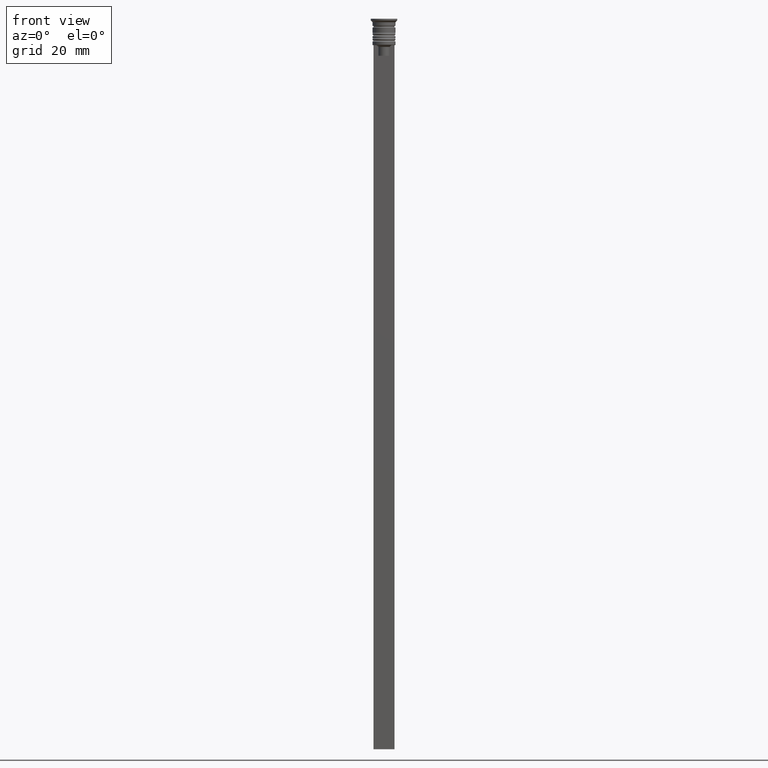
[diagram: clean part render]
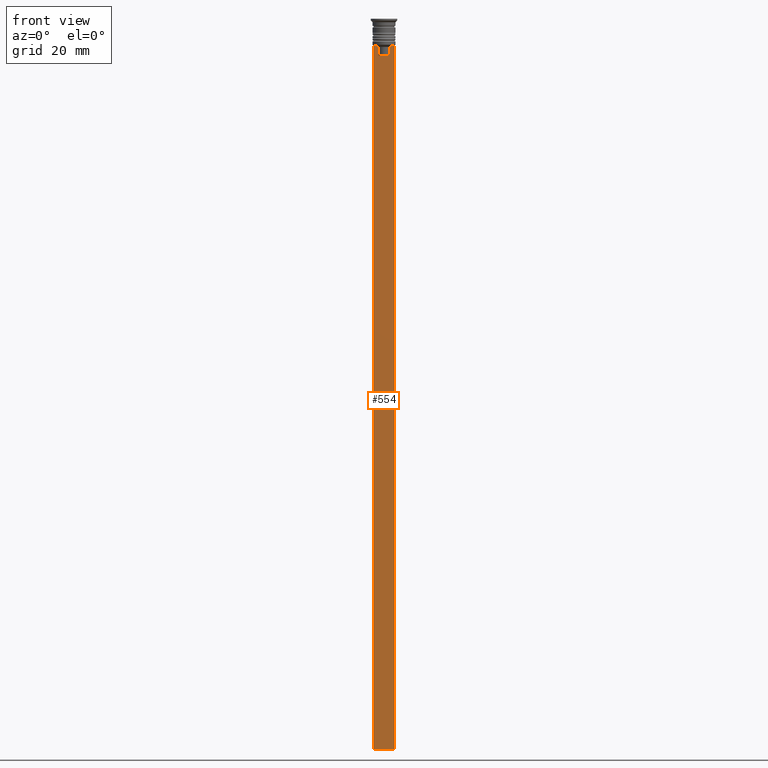
[diagram: same view with one face highlighted and labeled with its STEP entity id]
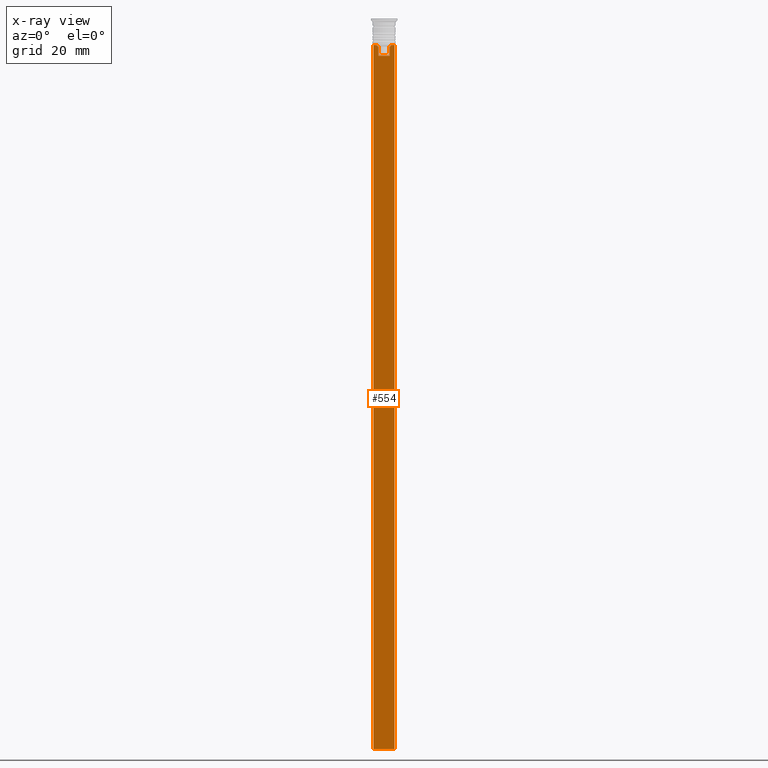
[diagram: x-ray of the same camera — body ghosted, the highlighted face saturated]
A machine part, front view. The second image highlights one B-rep face of the part: STEP entity #554.
The next image is the same camera in x-ray: the body ghosted, the highlighted face saturated — about 0% of this face is hidden behind the body in this view.
In plain terms, the highlighted planar face has unit normal (0, -1, -0).
Its self-contained STEP definition (entity closure, byte-faithful):
#5 = CARTESIAN_POINT ( 'NONE',  ( 2.999999999999995559, -0.3500000000000000333, -7.500000000000000000 ) ) ;
#15 = B_SPLINE_CURVE_WITH_KNOTS ( 'NONE', 3,
 ( #201, #1575, #1550, #1542 ),
 .UNSPECIFIED., .F., .F.,
 ( 4, 4 ),
 ( 0.003684653461239337929, 0.004398058763641257696 ),
 .UNSPECIFIED. ) ;
#19 = VECTOR ( 'NONE', #114, 1000.000000000000000 ) ;
#42 = CARTESIAN_POINT ( 'NONE',  ( 1.612451549659713601, -0.3500000000000000333, 0.000000000000000000 ) ) ;
#46 = VECTOR ( 'NONE', #1899, 1000.000000000000000 ) ;
#64 = ORIENTED_EDGE ( 'NONE', *, *, #2059, .F. ) ;
#90 = CARTESIAN_POINT ( 'NONE',  ( 2.999999999999995559, -0.3500000000000000333, -1.459304675784417915 ) ) ;
#114 = DIRECTION ( 'NONE',  ( -1.000000000000000000, 0.000000000000000000, 0.000000000000000000 ) ) ;
#167 = LINE ( 'NONE', #1491, #1529 ) ;
#201 = CARTESIAN_POINT ( 'NONE',  ( -2.121320343559647270, -0.3500000000000000333, -7.500000000000000000 ) ) ;
#285 = VERTEX_POINT ( 'NONE', #1363 ) ;
#318 = DIRECTION ( 'NONE',  ( 1.000000000000000000, 0.000000000000000000, 0.000000000000000000 ) ) ;
#319 = VERTEX_POINT ( 'NONE', #5 ) ;
#339 = VERTEX_POINT ( 'NONE', #560 ) ;
#381 = CARTESIAN_POINT ( 'NONE',  ( 1.612451549659713601, -0.3500000000000000333, -8.000000000000000000 ) ) ;
#410 = VERTEX_POINT ( 'NONE', #2062 ) ;
#421 = EDGE_CURVE ( 'NONE', #499, #427, #15, .T. ) ;
#424 = ORIENTED_EDGE ( 'NONE', *, *, #421, .F. ) ;
#427 = VERTEX_POINT ( 'NONE', #1042 ) ;
#458 = ORIENTED_EDGE ( 'NONE', *, *, #2029, .F. ) ;
#499 = VERTEX_POINT ( 'NONE', #593 ) ;
#534 = AXIS2_PLACEMENT_3D ( 'NONE', #1596, #776, #1434 ) ;
#554 = ADVANCED_FACE ( 'NONE', ( #1928 ), #970, .T. ) ;
#556 = CARTESIAN_POINT ( 'NONE',  ( 1.782523989086206795, -0.3500000000000000333, -7.833797837268088315 ) ) ;
#560 = CARTESIAN_POINT ( 'NONE',  ( 1.612451549659713601, -0.3500000000000000333, -8.000000000000000000 ) ) ;
#576 = DIRECTION ( 'NONE',  ( 0.000000000000000000, 0.000000000000000000, -1.000000000000000000 ) ) ;
#581 = EDGE_CURVE ( 'NONE', #1559, #410, #853, .T. ) ;
#587 = LINE ( 'NONE', #2132, #19 ) ;
#593 = CARTESIAN_POINT ( 'NONE',  ( -2.121320343559647270, -0.3500000000000000333, -7.500000000000000000 ) ) ;
#651 = B_SPLINE_CURVE_WITH_KNOTS ( 'NONE', 3,
 ( #381, #556, #1231, #884 ),
 .UNSPECIFIED., .F., .F.,
 ( 4, 4 ),
 ( 0.008600796474521228696, 0.009317962624906526645 ),
 .UNSPECIFIED. ) ;
#680 = DIRECTION ( 'NONE',  ( 1.000000000000000000, 0.000000000000000000, 0.000000000000000000 ) ) ;
#721 = EDGE_CURVE ( 'NONE', #410, #339, #1674, .T. ) ;
#772 = CARTESIAN_POINT ( 'NONE',  ( -3.000000000000004441, -0.3500000000000000333, -207.5000000000000284 ) ) ;
#774 = VERTEX_POINT ( 'NONE', #1711 ) ;
#776 = DIRECTION ( 'NONE',  ( 0.000000000000000000, -1.000000000000000000, -0.000000000000000000 ) ) ;
#782 = VECTOR ( 'NONE', #680, 1000.000000000000000 ) ;
#823 = VECTOR ( 'NONE', #1700, 1000.000000000000000 ) ;
#836 = ORIENTED_EDGE ( 'NONE', *, *, #1383, .F. ) ;
#853 = LINE ( 'NONE', #2025, #782 ) ;
#884 = CARTESIAN_POINT ( 'NONE',  ( 2.121320343559647270, -0.3500000000000000333, -7.500000000000000000 ) ) ;
#933 = VERTEX_POINT ( 'NONE', #772 ) ;
#935 = ORIENTED_EDGE ( 'NONE', *, *, #1440, .T. ) ;
#970 = PLANE ( 'NONE',  #534 ) ;
#1042 = CARTESIAN_POINT ( 'NONE',  ( -1.612451549659713601, -0.3500000000000000333, -8.000000000000000000 ) ) ;
#1076 = ORIENTED_EDGE ( 'NONE', *, *, #2044, .F. ) ;
#1082 = LINE ( 'NONE', #90, #1248 ) ;
#1128 = CARTESIAN_POINT ( 'NONE',  ( -1.612451549659713601, -0.3500000000000000333, -10.49999999999999822 ) ) ;
#1155 = DIRECTION ( 'NONE',  ( 1.000000000000000000, 0.000000000000000000, 0.000000000000000000 ) ) ;
#1166 = CARTESIAN_POINT ( 'NONE',  ( 2.999999999999995559, -0.3500000000000000333, -7.500000000000000000 ) ) ;
#1186 = EDGE_CURVE ( 'NONE', #1910, #499, #1689, .T. ) ;
#1231 = CARTESIAN_POINT ( 'NONE',  ( 1.952040775369266346, -0.3500000000000000333, -7.667021484535463394 ) ) ;
#1248 = VECTOR ( 'NONE', #576, 1000.000000000000000 ) ;
#1296 = ORIENTED_EDGE ( 'NONE', *, *, #721, .F. ) ;
#1314 = ORIENTED_EDGE ( 'NONE', *, *, #1508, .F. ) ;
#1360 = VECTOR ( 'NONE', #1155, 1000.000000000000000 ) ;
#1363 = CARTESIAN_POINT ( 'NONE',  ( 2.121320343559647270, -0.3500000000000000333, -7.500000000000000000 ) ) ;
#1383 = EDGE_CURVE ( 'NONE', #339, #285, #651, .T. ) ;
#1434 = DIRECTION ( 'NONE',  ( 0.000000000000000000, 0.000000000000000000, -1.000000000000000000 ) ) ;
#1440 = EDGE_CURVE ( 'NONE', #1910, #933, #1864, .T. ) ;
#1491 = CARTESIAN_POINT ( 'NONE',  ( -1.612451549659713601, -0.3500000000000000333, 0.000000000000000000 ) ) ;
#1508 = EDGE_CURVE ( 'NONE', #774, #933, #587, .T. ) ;
#1529 = VECTOR ( 'NONE', #1963, 1000.000000000000000 ) ;
#1539 = ORIENTED_EDGE ( 'NONE', *, *, #581, .F. ) ;
#1541 = EDGE_LOOP ( 'NONE', ( #424, #1790, #935, #1314, #458, #1076, #836, #1296, #1539, #64 ) ) ;
#1542 = CARTESIAN_POINT ( 'NONE',  ( -1.612451549659713601, -0.3500000000000000333, -8.000000000000000000 ) ) ;
#1550 = CARTESIAN_POINT ( 'NONE',  ( -1.782527878033862478, -0.3500000000000000333, -7.833794036819864637 ) ) ;
#1559 = VERTEX_POINT ( 'NONE', #1128 ) ;
#1575 = CARTESIAN_POINT ( 'NONE',  ( -1.952043732028444500, -0.3500000000000000333, -7.667018567316270961 ) ) ;
#1596 = CARTESIAN_POINT ( 'NONE',  ( 2.999999999999995559, -0.3500000000000000333, -1.459304675784417915 ) ) ;
#1674 = LINE ( 'NONE', #42, #46 ) ;
#1689 = LINE ( 'NONE', #1166, #1908 ) ;
#1700 = DIRECTION ( 'NONE',  ( 0.000000000000000000, 0.000000000000000000, -1.000000000000000000 ) ) ;
#1709 = CARTESIAN_POINT ( 'NONE',  ( -3.000000000000004441, -0.3500000000000000333, -1.459304675784417915 ) ) ;
#1711 = CARTESIAN_POINT ( 'NONE',  ( 2.999999999999995559, -0.3500000000000000333, -207.5000000000000284 ) ) ;
#1790 = ORIENTED_EDGE ( 'NONE', *, *, #1186, .F. ) ;
#1813 = CARTESIAN_POINT ( 'NONE',  ( 2.999999999999995559, -0.3500000000000000333, -7.500000000000000000 ) ) ;
#1864 = LINE ( 'NONE', #1709, #823 ) ;
#1899 = DIRECTION ( 'NONE',  ( -0.000000000000000000, -0.000000000000000000, 1.000000000000000000 ) ) ;
#1908 = VECTOR ( 'NONE', #318, 1000.000000000000000 ) ;
#1910 = VERTEX_POINT ( 'NONE', #2051 ) ;
#1921 = LINE ( 'NONE', #1813, #1360 ) ;
#1928 = FACE_OUTER_BOUND ( 'NONE', #1541, .T. ) ;
#1963 = DIRECTION ( 'NONE',  ( 0.000000000000000000, 0.000000000000000000, -1.000000000000000000 ) ) ;
#2025 = CARTESIAN_POINT ( 'NONE',  ( 0.000000000000000000, -0.3500000000000000333, -10.49999999999999822 ) ) ;
#2029 = EDGE_CURVE ( 'NONE', #319, #774, #1082, .T. ) ;
#2044 = EDGE_CURVE ( 'NONE', #285, #319, #1921, .T. ) ;
#2051 = CARTESIAN_POINT ( 'NONE',  ( -3.000000000000004441, -0.3500000000000000333, -7.500000000000000000 ) ) ;
#2059 = EDGE_CURVE ( 'NONE', #427, #1559, #167, .T. ) ;
#2062 = CARTESIAN_POINT ( 'NONE',  ( 1.612451549659713601, -0.3500000000000000333, -10.49999999999999822 ) ) ;
#2132 = CARTESIAN_POINT ( 'NONE',  ( 2.999999999999995559, -0.3500000000000000333, -207.5000000000000284 ) ) ;